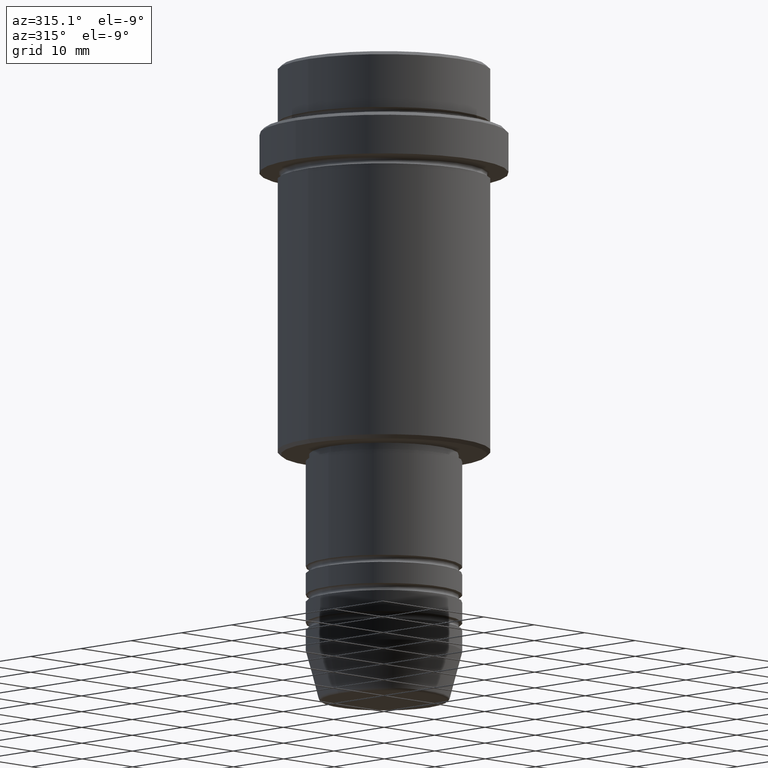
[diagram: clean part render]
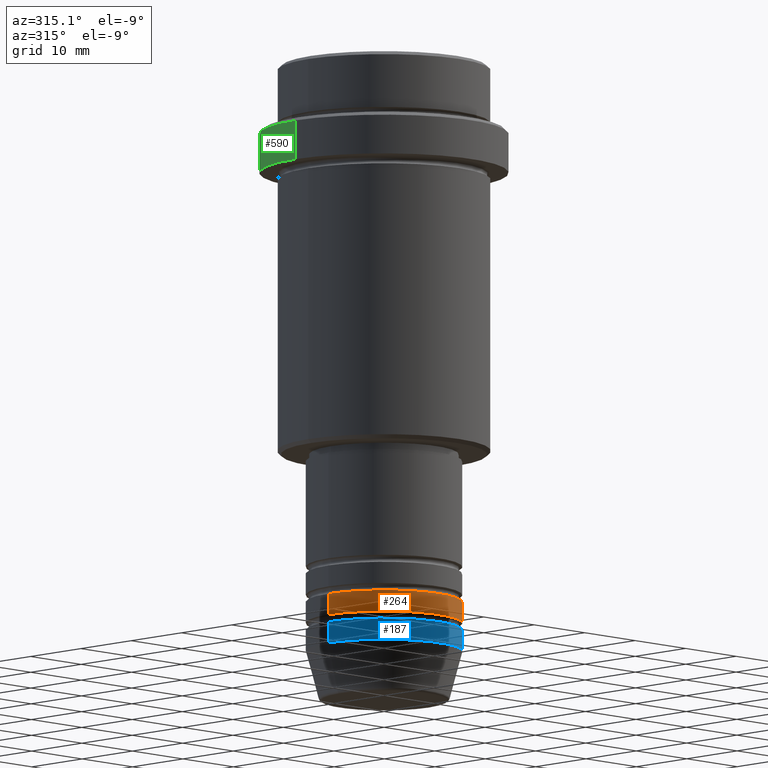
[diagram: same view with three faces highlighted in distinct colors, each labeled with its STEP entity id]
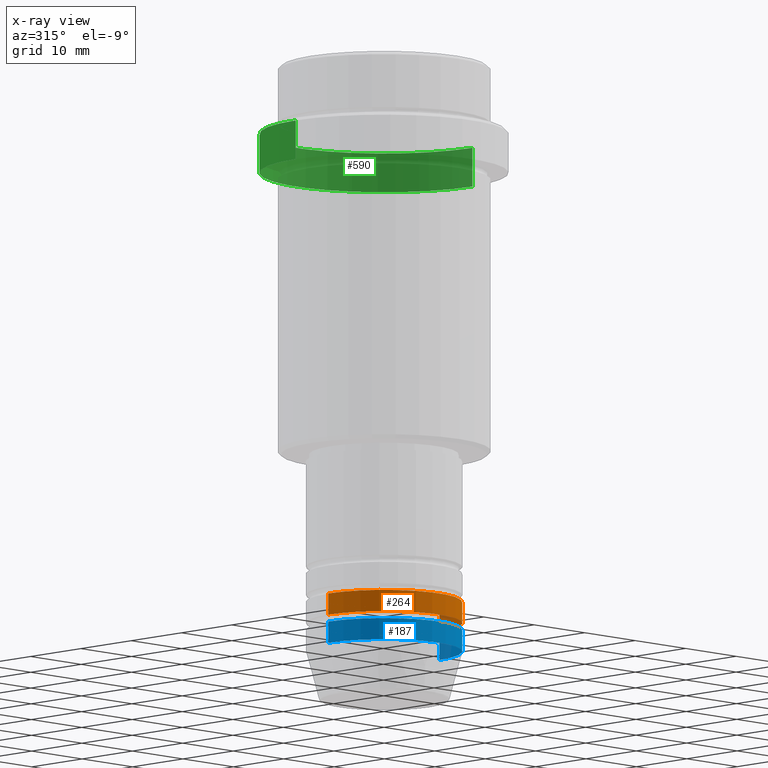
[diagram: x-ray of the same camera — body ghosted, the three highlighted faces saturated]
A machine part, auxiliary view with three faces highlighted in distinct colors.
The next image is the same camera in x-ray (body ghosted, the three faces saturated) — at least one of them is partly hidden behind the body in this view.
Their STEP definitions:

[orange] entity #264 — the highlighted cylindrical surface (partial cylindrical patch) has radius 11 mm, axis along (-0, -0, 1).
#15 = CIRCLE ( 'NONE', #294, 11.00000000000000000 ) ;
#101 = DIRECTION ( 'NONE',  ( 1.000000000000000000, 0.000000000000000000, 0.000000000000000000 ) ) ;
#122 = EDGE_CURVE ( 'NONE', #1161, #159, #197, .T. ) ;
#146 = ORIENTED_EDGE ( 'NONE', *, *, #122, .T. ) ;
#159 = VERTEX_POINT ( 'NONE', #452 ) ;
#169 = DIRECTION ( 'NONE',  ( -0.000000000000000000, -0.000000000000000000, 1.000000000000000000 ) ) ;
#197 = CIRCLE ( 'NONE', #1287, 11.00000000000000000 ) ;
#214 = DIRECTION ( 'NONE',  ( 1.000000000000000000, 0.000000000000000000, 0.000000000000000000 ) ) ;
#244 = EDGE_CURVE ( 'NONE', #905, #429, #15, .T. ) ;
#264 = ADVANCED_FACE ( 'NONE', ( #654 ), #783, .T. ) ;
#294 = AXIS2_PLACEMENT_3D ( 'NONE', #664, #1322, #101 ) ;
#378 = CARTESIAN_POINT ( 'NONE',  ( 11.00000000000000000, 0.000000000000000000, 0.000000000000000000 ) ) ;
#421 = DIRECTION ( 'NONE',  ( -0.000000000000000000, -0.000000000000000000, 1.000000000000000000 ) ) ;
#429 = VERTEX_POINT ( 'NONE', #717 ) ;
#452 = CARTESIAN_POINT ( 'NONE',  ( 11.00000000000000000, 0.000000000000000000, -78.99999999999990052 ) ) ;
#458 = CARTESIAN_POINT ( 'NONE',  ( 0.000000000000000000, 0.000000000000000000, 0.000000000000000000 ) ) ;
#469 = EDGE_LOOP ( 'NONE', ( #801, #146, #1255, #493 ) ) ;
#493 = ORIENTED_EDGE ( 'NONE', *, *, #244, .F. ) ;
#495 = CARTESIAN_POINT ( 'NONE',  ( -11.00000000000000000, 1.347111479062088405E-15, -78.99999999999990052 ) ) ;
#558 = EDGE_CURVE ( 'NONE', #1161, #905, #638, .T. ) ;
#638 = LINE ( 'NONE', #1070, #1013 ) ;
#644 = CARTESIAN_POINT ( 'NONE',  ( 0.000000000000000000, 0.000000000000000000, -78.99999999999990052 ) ) ;
#654 = FACE_OUTER_BOUND ( 'NONE', #469, .T. ) ;
#664 = CARTESIAN_POINT ( 'NONE',  ( 0.000000000000000000, 0.000000000000000000, -75.99999999999990052 ) ) ;
#673 = DIRECTION ( 'NONE',  ( 1.000000000000000000, 0.000000000000000000, 0.000000000000000000 ) ) ;
#711 = LINE ( 'NONE', #378, #1293 ) ;
#717 = CARTESIAN_POINT ( 'NONE',  ( 11.00000000000000000, 0.000000000000000000, -75.99999999999990052 ) ) ;
#731 = DIRECTION ( 'NONE',  ( -0.000000000000000000, -0.000000000000000000, 1.000000000000000000 ) ) ;
#783 = CYLINDRICAL_SURFACE ( 'NONE', #1405, 11.00000000000000000 ) ;
#801 = ORIENTED_EDGE ( 'NONE', *, *, #558, .F. ) ;
#905 = VERTEX_POINT ( 'NONE', #962 ) ;
#962 = CARTESIAN_POINT ( 'NONE',  ( -11.00000000000000000, 1.347111479062088405E-15, -75.99999999999990052 ) ) ;
#1013 = VECTOR ( 'NONE', #731, 1000.000000000000000 ) ;
#1070 = CARTESIAN_POINT ( 'NONE',  ( -11.00000000000000000, 1.347111479062088405E-15, 0.000000000000000000 ) ) ;
#1157 = EDGE_CURVE ( 'NONE', #159, #429, #711, .T. ) ;
#1161 = VERTEX_POINT ( 'NONE', #495 ) ;
#1255 = ORIENTED_EDGE ( 'NONE', *, *, #1157, .T. ) ;
#1287 = AXIS2_PLACEMENT_3D ( 'NONE', #644, #421, #214 ) ;
#1293 = VECTOR ( 'NONE', #169, 1000.000000000000000 ) ;
#1322 = DIRECTION ( 'NONE',  ( -0.000000000000000000, -0.000000000000000000, 1.000000000000000000 ) ) ;
#1327 = DIRECTION ( 'NONE',  ( -0.000000000000000000, -0.000000000000000000, 1.000000000000000000 ) ) ;
#1405 = AXIS2_PLACEMENT_3D ( 'NONE', #458, #1327, #673 ) ;

[blue] entity #187 — the highlighted cylindrical surface (partial cylindrical patch) has radius 11 mm, axis along (-0, -0, 1).
#1 = DIRECTION ( 'NONE',  ( -0.000000000000000000, -0.000000000000000000, 1.000000000000000000 ) ) ;
#102 = AXIS2_PLACEMENT_3D ( 'NONE', #328, #1, #1198 ) ;
#149 = VERTEX_POINT ( 'NONE', #1223 ) ;
#175 = VERTEX_POINT ( 'NONE', #759 ) ;
#186 = DIRECTION ( 'NONE',  ( -0.000000000000000000, -0.000000000000000000, 1.000000000000000000 ) ) ;
#187 = ADVANCED_FACE ( 'NONE', ( #680 ), #895, .T. ) ;
#248 = LINE ( 'NONE', #1361, #1215 ) ;
#255 = DIRECTION ( 'NONE',  ( -0.000000000000000000, -0.000000000000000000, 1.000000000000000000 ) ) ;
#277 = ORIENTED_EDGE ( 'NONE', *, *, #1280, .F. ) ;
#289 = VERTEX_POINT ( 'NONE', #1044 ) ;
#328 = CARTESIAN_POINT ( 'NONE',  ( 0.000000000000000000, 0.000000000000000000, 0.000000000000000000 ) ) ;
#376 = ORIENTED_EDGE ( 'NONE', *, *, #749, .F. ) ;
#426 = EDGE_LOOP ( 'NONE', ( #376, #1210, #1183, #277 ) ) ;
#443 = VERTEX_POINT ( 'NONE', #836 ) ;
#517 = AXIS2_PLACEMENT_3D ( 'NONE', #940, #255, #924 ) ;
#533 = CIRCLE ( 'NONE', #1060, 11.00000000000000000 ) ;
#538 = LINE ( 'NONE', #1304, #1290 ) ;
#680 = FACE_OUTER_BOUND ( 'NONE', #426, .T. ) ;
#749 = EDGE_CURVE ( 'NONE', #149, #443, #538, .T. ) ;
#759 = CARTESIAN_POINT ( 'NONE',  ( 11.00000000000000000, 0.000000000000000000, -83.00000000000000000 ) ) ;
#792 = EDGE_CURVE ( 'NONE', #175, #289, #248, .T. ) ;
#836 = CARTESIAN_POINT ( 'NONE',  ( -11.00000000000000000, 1.347111479062088405E-15, -80.00000000000000000 ) ) ;
#895 = CYLINDRICAL_SURFACE ( 'NONE', #102, 11.00000000000000000 ) ;
#924 = DIRECTION ( 'NONE',  ( 1.000000000000000000, 0.000000000000000000, 0.000000000000000000 ) ) ;
#940 = CARTESIAN_POINT ( 'NONE',  ( 0.000000000000000000, 0.000000000000000000, -80.00000000000000000 ) ) ;
#949 = DIRECTION ( 'NONE',  ( 1.000000000000000000, 0.000000000000000000, 0.000000000000000000 ) ) ;
#964 = EDGE_CURVE ( 'NONE', #149, #175, #533, .T. ) ;
#1016 = DIRECTION ( 'NONE',  ( -0.000000000000000000, -0.000000000000000000, 1.000000000000000000 ) ) ;
#1034 = DIRECTION ( 'NONE',  ( -0.000000000000000000, -0.000000000000000000, 1.000000000000000000 ) ) ;
#1044 = CARTESIAN_POINT ( 'NONE',  ( 11.00000000000000000, 0.000000000000000000, -80.00000000000000000 ) ) ;
#1060 = AXIS2_PLACEMENT_3D ( 'NONE', #1167, #186, #949 ) ;
#1167 = CARTESIAN_POINT ( 'NONE',  ( 0.000000000000000000, 0.000000000000000000, -83.00000000000000000 ) ) ;
#1183 = ORIENTED_EDGE ( 'NONE', *, *, #792, .T. ) ;
#1198 = DIRECTION ( 'NONE',  ( 1.000000000000000000, 0.000000000000000000, 0.000000000000000000 ) ) ;
#1210 = ORIENTED_EDGE ( 'NONE', *, *, #964, .T. ) ;
#1215 = VECTOR ( 'NONE', #1016, 1000.000000000000000 ) ;
#1223 = CARTESIAN_POINT ( 'NONE',  ( -11.00000000000000000, 1.347111479062088405E-15, -83.00000000000000000 ) ) ;
#1244 = CIRCLE ( 'NONE', #517, 11.00000000000000000 ) ;
#1280 = EDGE_CURVE ( 'NONE', #443, #289, #1244, .T. ) ;
#1290 = VECTOR ( 'NONE', #1034, 1000.000000000000000 ) ;
#1304 = CARTESIAN_POINT ( 'NONE',  ( -11.00000000000000000, 1.347111479062088405E-15, 0.000000000000000000 ) ) ;
#1361 = CARTESIAN_POINT ( 'NONE',  ( 11.00000000000000000, 0.000000000000000000, 0.000000000000000000 ) ) ;

[green] entity #590 — the highlighted cylindrical surface (partial cylindrical patch) has radius 17.5 mm, axis along (-0, -0, 1).
#55 = ORIENTED_EDGE ( 'NONE', *, *, #803, .T. ) ;
#60 = AXIS2_PLACEMENT_3D ( 'NONE', #894, #888, #428 ) ;
#63 = LINE ( 'NONE', #518, #441 ) ;
#65 = AXIS2_PLACEMENT_3D ( 'NONE', #1256, #1129, #1342 ) ;
#79 = ORIENTED_EDGE ( 'NONE', *, *, #978, .F. ) ;
#193 = CARTESIAN_POINT ( 'NONE',  ( -17.50000000000000000, 2.143131898507868248E-15, 0.000000000000000000 ) ) ;
#216 = FACE_OUTER_BOUND ( 'NONE', #242, .T. ) ;
#242 = EDGE_LOOP ( 'NONE', ( #1151, #619, #55, #79 ) ) ;
#306 = CARTESIAN_POINT ( 'NONE',  ( -17.50000000000000000, 2.143131898507868248E-15, -15.00000000000000000 ) ) ;
#311 = CYLINDRICAL_SURFACE ( 'NONE', #60, 17.50000000000000000 ) ;
#343 = CIRCLE ( 'NONE', #1267, 17.50000000000000000 ) ;
#346 = CIRCLE ( 'NONE', #65, 17.50000000000000000 ) ;
#422 = VERTEX_POINT ( 'NONE', #1341 ) ;
#428 = DIRECTION ( 'NONE',  ( 1.000000000000000000, 0.000000000000000000, 0.000000000000000000 ) ) ;
#441 = VECTOR ( 'NONE', #744, 1000.000000000000000 ) ;
#474 = DIRECTION ( 'NONE',  ( 0.000000000000000000, 0.000000000000000000, -1.000000000000000000 ) ) ;
#475 = VERTEX_POINT ( 'NONE', #306 ) ;
#518 = CARTESIAN_POINT ( 'NONE',  ( 17.50000000000000000, 0.000000000000000000, 0.000000000000000000 ) ) ;
#525 = EDGE_CURVE ( 'NONE', #475, #1179, #1181, .T. ) ;
#590 = ADVANCED_FACE ( 'NONE', ( #216 ), #311, .T. ) ;
#594 = CARTESIAN_POINT ( 'NONE',  ( -17.50000000000000000, 2.143131898507868248E-15, -9.499999999999971578 ) ) ;
#619 = ORIENTED_EDGE ( 'NONE', *, *, #525, .T. ) ;
#646 = DIRECTION ( 'NONE',  ( -0.000000000000000000, -0.000000000000000000, 1.000000000000000000 ) ) ;
#744 = DIRECTION ( 'NONE',  ( -0.000000000000000000, -0.000000000000000000, 1.000000000000000000 ) ) ;
#803 = EDGE_CURVE ( 'NONE', #1179, #422, #343, .T. ) ;
#823 = DIRECTION ( 'NONE',  ( 1.000000000000000000, 0.000000000000000000, 0.000000000000000000 ) ) ;
#888 = DIRECTION ( 'NONE',  ( -0.000000000000000000, -0.000000000000000000, 1.000000000000000000 ) ) ;
#894 = CARTESIAN_POINT ( 'NONE',  ( 0.000000000000000000, 0.000000000000000000, 0.000000000000000000 ) ) ;
#952 = VECTOR ( 'NONE', #646, 1000.000000000000000 ) ;
#978 = EDGE_CURVE ( 'NONE', #1200, #422, #63, .T. ) ;
#1006 = CARTESIAN_POINT ( 'NONE',  ( 0.000000000000000000, 0.000000000000000000, -9.499999999999971578 ) ) ;
#1030 = CARTESIAN_POINT ( 'NONE',  ( 17.50000000000000000, 0.000000000000000000, -15.00000000000000000 ) ) ;
#1129 = DIRECTION ( 'NONE',  ( -0.000000000000000000, -0.000000000000000000, 1.000000000000000000 ) ) ;
#1151 = ORIENTED_EDGE ( 'NONE', *, *, #1228, .T. ) ;
#1179 = VERTEX_POINT ( 'NONE', #594 ) ;
#1181 = LINE ( 'NONE', #193, #952 ) ;
#1200 = VERTEX_POINT ( 'NONE', #1030 ) ;
#1228 = EDGE_CURVE ( 'NONE', #1200, #475, #346, .T. ) ;
#1256 = CARTESIAN_POINT ( 'NONE',  ( 0.000000000000000000, 0.000000000000000000, -15.00000000000000000 ) ) ;
#1267 = AXIS2_PLACEMENT_3D ( 'NONE', #1006, #474, #823 ) ;
#1341 = CARTESIAN_POINT ( 'NONE',  ( 17.50000000000000000, 0.000000000000000000, -9.499999999999971578 ) ) ;
#1342 = DIRECTION ( 'NONE',  ( 1.000000000000000000, 0.000000000000000000, 0.000000000000000000 ) ) ;